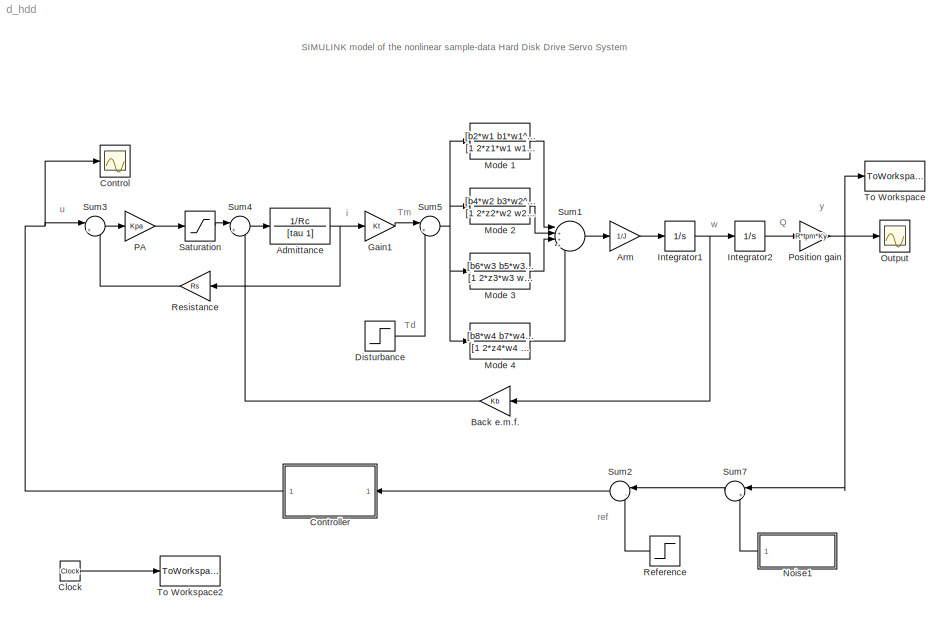
MODEL d_hdd
KIND model
BLOCK [TransferFcn] Admittance
  Denominator = [tau  1]
  Numerator = 1/Rc
BLOCK [Gain] Arm
  Gain = 1/J
BLOCK [Gain] Back e.m.f.
  Gain = Kb
BLOCK [Clock] Clock
  Decimation = 1
BLOCK [Scope] Control
  DataFormat = StructureWithTime
  Floating = off
  NumInputPorts = 1
  Ports = [1]
  SampleTime = 0
  SaveName = ScopeData2
  TimeRange = 0.01
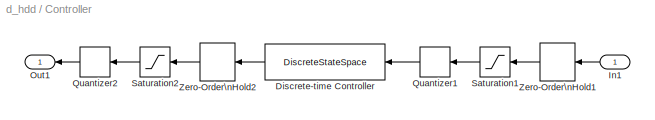
BLOCK [SubSystem] Controller
  MaskHideContents = off
  MinAlgLoopOccurrences = off
  Ports = [1, 1]
  RTWSystemCode = Auto
  TreatAsAtomicUnit = off
BLOCK [DiscreteStateSpace] Controller/Discrete-time Controller
  A = akd
  B = bkd
  C = ckd
  D = dkd
  SampleTime = Ts
BLOCK [Inport] Controller/In1
  IconDisplay = Port number
BLOCK [Outport] Controller/Out1
  BusOutputAsStruct = off
  IconDisplay = Port number
BLOCK [Quantizer] Controller/Quantizer1
  QuantizationInterval = 2*u_adc/2^B_adc
BLOCK [Quantizer] Controller/Quantizer2
  QuantizationInterval = 2*u_dac/2^B_dac
BLOCK [Saturate] Controller/Saturation1
  LowerLimit = -u_adc
  UpperLimit = u_adc
BLOCK [Saturate] Controller/Saturation2
  LowerLimit = -u_dac
  UpperLimit = u_dac
BLOCK [ZeroOrderHold] Controller/Zero-Order\nHold1
  SampleTime = Ts
BLOCK [ZeroOrderHold] Controller/Zero-Order\nHold2
  SampleTime = Ts
BLOCK [Step] Disturbance
  After = 0
  SampleTime = 0
  Time = 0
BLOCK [Gain] Gain1
  Gain = Kt
BLOCK [Integrator] Integrator1
  IgnoreLimit = off
  Ports = [1, 1]
BLOCK [Integrator] Integrator2
  IgnoreLimit = off
  Ports = [1, 1]
BLOCK [TransferFcn] Mode 1
  Denominator = [1 2*z1*w1 w1^2]
  Numerator = [b2*w1 b1*w1^2]
BLOCK [TransferFcn] Mode 2
  Denominator = [1 2*z2*w2 w2^2]
  Numerator = [b4*w2 b3*w2^2]
BLOCK [TransferFcn] Mode 3
  Denominator = [1 2*z3*w3  w3^2]
  Numerator = [b6*w3  b5*w3^2]
BLOCK [TransferFcn] Mode 4
  Denominator = [1  2*z4*w4  w4^2]
  Numerator = [b8*w4  b7*w4^2]
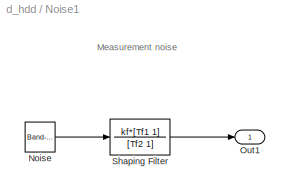
BLOCK [SubSystem] Noise1
  MaskHideContents = off
  MaskIconFrame = on
  MaskIconOpaque = on
  MaskIconRotate = none
  MaskIconUnits = autoscale
  MinAlgLoopOccurrences = off
  Ports = [0, 1]
  RTWSystemCode = Auto
  TreatAsAtomicUnit = off
BLOCK [Reference] Noise1/Noise  REF=simulink/Sources/Band-Limited\nWhite Noise
  Cov = 10^(-4)
  Ports = [0, 1]
  ShowPortLabels = on
  SourceBlock = simulink/Sources/Band-Limited\nWhite Noise
  SourceType = Band-Limited White Noise.
  Ts = 0.1
  VectorParams1D = on
  seed = [23341]
BLOCK [Outport] Noise1/Out1
  BusOutputAsStruct = off
  IconDisplay = Port number
BLOCK [TransferFcn] Noise1/Shaping Filter
  Denominator = [Tf2  1]
  Numerator = kf*[Tf1  1]
BLOCK [Scope] Output
  DataFormat = StructureWithTime
  Floating = off
  NumInputPorts = 1
  Ports = [1]
  SampleTime = 0
  ZoomMode = yonly
BLOCK [Gain] PA
  Gain = Kpa
BLOCK [Gain] Position gain
  Gain = R*tpm*Ky
BLOCK [Step] Reference
  After = 1.2
  SampleTime = 0
  Time = 0
BLOCK [Gain] Resistance
  Gain = Rs
BLOCK [Saturate] Saturation
  LowerLimit = -emax
  UpperLimit = emax
BLOCK [Sum] Sum1
  IconShape = round
  Inputs = |++++
  Ports = [4, 1]
BLOCK [Sum] Sum2
  IconShape = round
  Inputs = |-+
  Ports = [2, 1]
BLOCK [Sum] Sum3
  IconShape = round
  Inputs = |+-
  Ports = [2, 1]
BLOCK [Sum] Sum4
  IconShape = round
  Inputs = |+-
  Ports = [2, 1]
BLOCK [Sum] Sum5
  IconShape = round
  Inputs = |++
  Ports = [2, 1]
BLOCK [Sum] Sum7
  IconShape = round
  Inputs = |++
  Ports = [2, 1]
BLOCK [ToWorkspace] To Workspace
  MaxDataPoints = inf
  SampleTime = -1
  SaveFormat = Array
  VariableName = y
BLOCK [ToWorkspace] To Workspace2
  MaxDataPoints = inf
  SampleTime = -1
  SaveFormat = Array
  VariableName = t
ANNOTATION (root): y
ANNOTATION (root): SIMULINK model of the nonlinear sample-data Hard Disk Drive Servo System
ANNOTATION (root): Q
ANNOTATION (root): Td
ANNOTATION (root): Tm
ANNOTATION (root): i
ANNOTATION (root): ref
ANNOTATION (root): u
ANNOTATION (root): w
ANNOTATION Noise1: Measurement noise
NET Admittance:1 -> Gain1:1, Resistance:1
LINE Arm:1 -> Integrator1:1
LINE Back e.m.f.:1 -> Sum4:2
LINE Clock:1 -> To Workspace2:1
LINE Controller/Discrete-time Controller:1 -> Controller/Zero-Order\nHold2:1
LINE Controller/In1:1 -> Controller/Zero-Order\nHold1:1
LINE Controller/Quantizer1:1 -> Controller/Discrete-time Controller:1
LINE Controller/Quantizer2:1 -> Controller/Out1:1
LINE Controller/Saturation1:1 -> Controller/Quantizer1:1
LINE Controller/Saturation2:1 -> Controller/Quantizer2:1
LINE Controller/Zero-Order\nHold1:1 -> Controller/Saturation1:1
LINE Controller/Zero-Order\nHold2:1 -> Controller/Saturation2:1
NET Controller:1 -> Control:1, Sum3:1
LINE Disturbance:1 -> Sum5:2
LINE Gain1:1 -> Sum5:1
NET Integrator1:1 -> Back e.m.f.:1, Integrator2:1
LINE Integrator2:1 -> Position gain:1
LINE Mode 1:1 -> Sum1:1
LINE Mode 2:1 -> Sum1:2
LINE Mode 3:1 -> Sum1:3
LINE Mode 4:1 -> Sum1:4
LINE Noise1/Noise:1 -> Noise1/Shaping Filter:1
LINE Noise1/Shaping Filter:1 -> Noise1/Out1:1
LINE Noise1:1 -> Sum7:2
LINE PA:1 -> Saturation:1
NET Position gain:1 -> Output:1, Sum7:1, To Workspace:1
LINE Reference:1 -> Sum2:2
LINE Resistance:1 -> Sum3:2
LINE Saturation:1 -> Sum4:1
LINE Sum1:1 -> Arm:1
LINE Sum2:1 -> Controller:1
LINE Sum3:1 -> PA:1
LINE Sum4:1 -> Admittance:1
NET Sum5:1 -> Mode 1:1, Mode 2:1, Mode 3:1, Mode 4:1
LINE Sum7:1 -> Sum2:1
note: NET lines group one-source signal fan-out (src -> all destinations, sorted); 1:1 wires keep LINE
